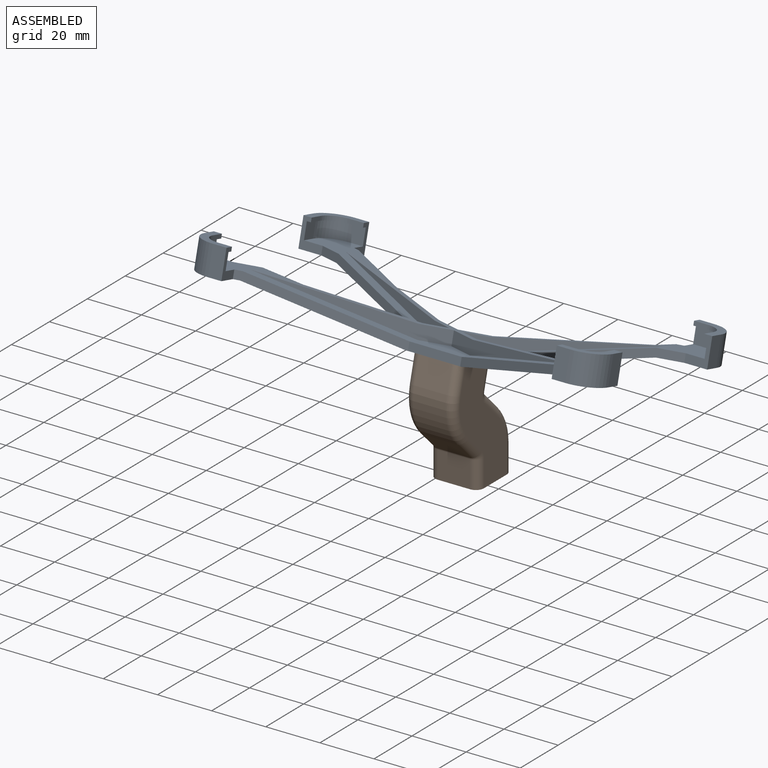
[diagram: assembled view]
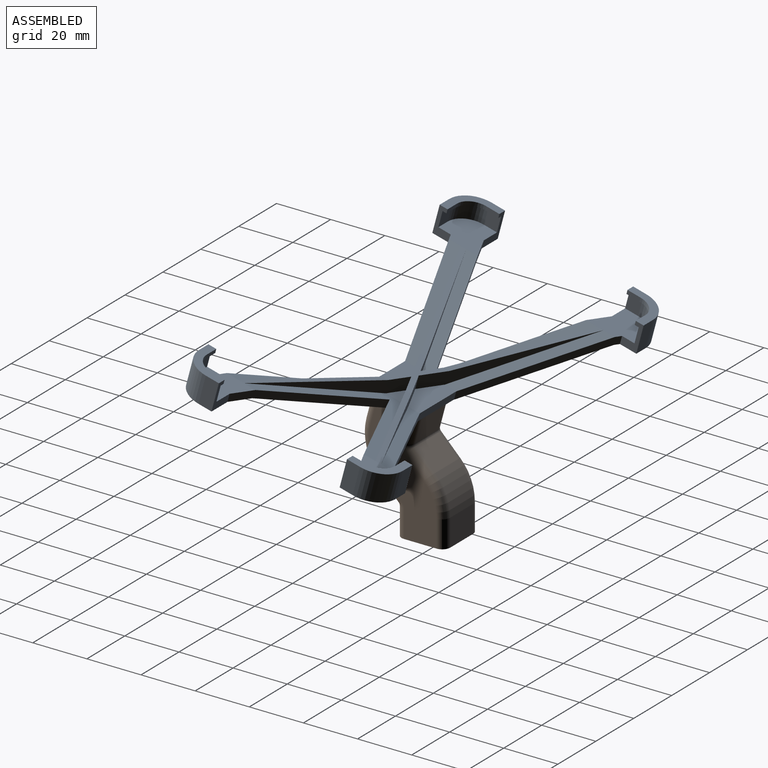
[diagram: assembled view, second angle]
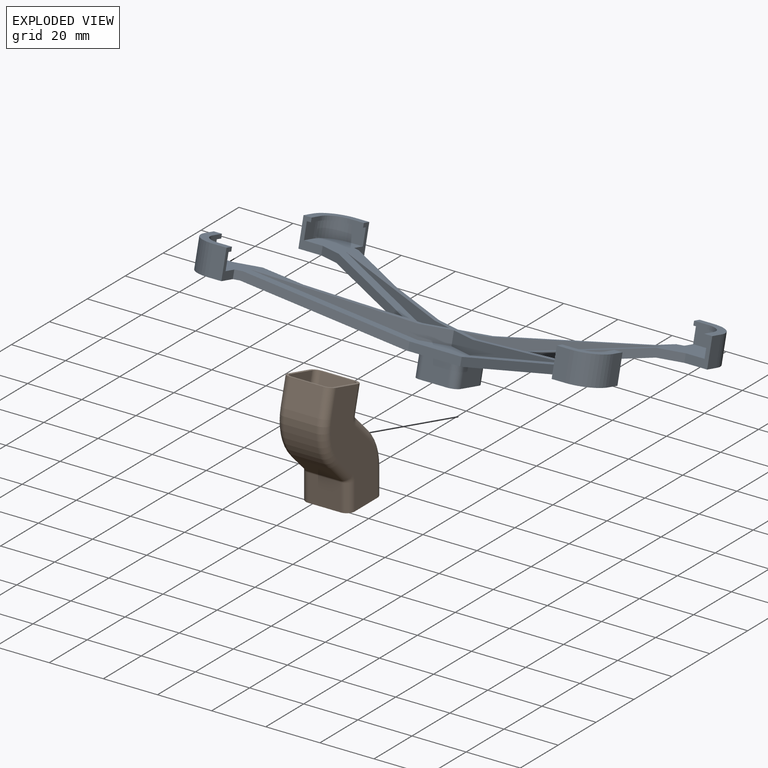
[diagram: exploded view]
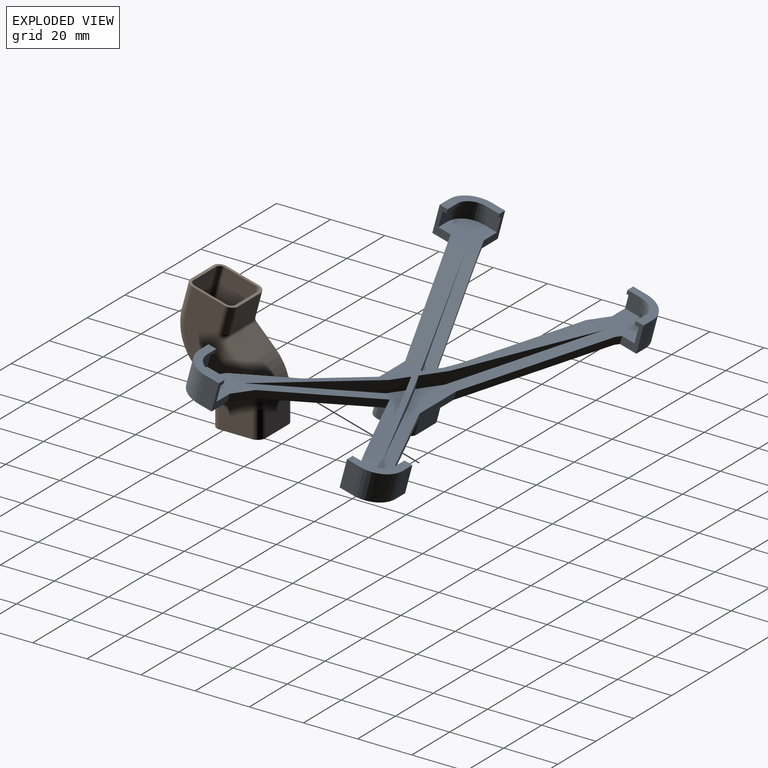
[diagram: exploded view, second angle]
ASSEMBLY  parts=2 mates=3
PART A: 114 faces, bbox 151x78x30.5 mm
  f0: plane 16.77x15.36mm, normal (0,0,1), area 189.4mm2, adj f10,f11,f12,f22,f25,f26,f63,f70
  f1: plane 16.77x15.36mm, normal (0,0,1), area 189.4mm2, adj f9,f10,f13,f27,f28,f31,f59,f67
  f2: plane 19.28x8.69mm, normal (0,0,1), area 126mm2, adj f8,f9,f49,f51,f52
  f3: plane 7.19x6.43mm, normal (0,0,1), area 23.1mm2, adj f10,f53,f54
  f4: plane 19.28x8.69mm, normal (0,0,1), area 126mm2, adj f6,f11,f50,f55,f56
  f5: plane 7.19x6.43mm, normal (0,0,1), area 23.1mm2, adj f7,f57,f58
  f6: plane 49x26.28mm, normal (0.24,0,0.97), area 221mm2, adj f4,f21,f41,f56
  f7: plane 50.23x49mm, normal (0.24,0,0.97), area 438.9mm2, adj f5,f37,f38,f40,f41,f57,f58
  f8: plane 49x26.28mm, normal (0.24,0,0.97), area 221mm2, adj f2,f32,f40,f51
  f9: plane 49x26.28mm, normal (-0.24,0,0.97), area 221mm2, adj f1,f2,f13,f52
  f10: plane 50.23x49mm, normal (-0.24,0,0.97), area 438.9mm2, adj f0,f1,f3,f26,f27,f53,f54
  f11: plane 49x26.28mm, normal (-0.24,0,0.97), area 221mm2, adj f0,f4,f12,f55
  f12: plane 51.36x22.96mm, normal (-0.41,-0.91,0), area 173.5mm2, adj f0,f11,f22,f42,f46,f47,f50
  f13: plane 51.36x22.96mm, normal (-0.41,0.91,0), area 173.5mm2, adj f1,f9,f31,f45,f46,f47,f49
  f14: plane 10.5x5mm, normal (-1,0,0), area 52.5mm2, adj f18,f39,f44,f85
  f15: plane 10.5x5mm, normal (1,0,0), area 52.5mm2, adj f24,f25,f42,f90
  f16: plane 10.5x5mm, normal (1,0,0), area 52.5mm2, adj f28,f29,f45,f94
  f17: plane 10.5x5mm, normal (-1,0,0), area 52.5mm2, adj f35,f36,f43,f79
  f18: cylinder r=9.5mm len=10.5mm, axis (0,0,1), area 156.7mm2, adj f14,f19,f44,f85
  f19: plane 10.5x5mm, normal (0,-1,0), area 52.5mm2, adj f18,f20,f44,f85
  f20: plane 10.5x6.26mm, normal (1,0,0), area 32.3mm2, adj f19,f21,f41,f44,f73,f81,f83,f85
  f21: plane 51.36x22.96mm, normal (0.41,-0.91,0), area 173.5mm2, adj f6,f20,f41,f44,f47,f48,f50
  f22: plane 10.5x6.26mm, normal (-1,0,0), area 32.3mm2, adj f0,f12,f23,f42,f72,f86,f89,f90
  f23: plane 10.5x5mm, normal (0,-1,0), area 52.5mm2, adj f22,f24,f42,f90
  f24: cylinder r=9.5mm len=10.5mm, axis (0,0,1), area 156.7mm2, adj f15,f23,f42,f90
  f25: plane 10.5x8.43mm, normal (0,1,0), area 38.8mm2, adj f0,f15,f26,f42,f70,f86,f87,f90
  f26: plane 54.81x24.5mm, normal (0.41,0.91,0), area 184.6mm2, adj f0,f10,f25,f27,f42,f46
  f27: plane 54.81x24.5mm, normal (0.41,-0.91,0), area 184.6mm2, adj f1,f10,f26,f28,f45,f46
  f28: plane 10.5x8.43mm, normal (0,-1,0), area 38.8mm2, adj f1,f16,f27,f45,f69,f93,f94,f95
  f29: cylinder r=9.5mm len=10.5mm, axis (0,0,1), area 156.7mm2, adj f16,f30,f45,f94
  f30: plane 10.5x5mm, normal (0,1,0), area 52.5mm2, adj f29,f31,f45,f94
  f31: plane 10.5x6.26mm, normal (-1,0,0), area 32.3mm2, adj f1,f13,f30,f45,f67,f91,f94,f95
  f32: plane 51.36x22.96mm, normal (0.41,0.91,0), area 173.5mm2, adj f8,f33,f40,f43,f47,f48,f49
  f33: plane 10.5x6.26mm, normal (1,0,0), area 32.3mm2, adj f32,f34,f40,f43,f66,f78,f79,f80
  f34: plane 10.5x5mm, normal (0,1,0), area 52.5mm2, adj f33,f35,f43,f79
  f35: cylinder r=9.5mm len=10.5mm, axis (0,0,1), area 156.7mm2, adj f17,f34,f43,f79
  f36: plane 10.5x8.43mm, normal (0,-1,0), area 38.8mm2, adj f17,f37,f40,f43,f64,f76,f79,f80
  f37: plane 54.81x24.5mm, normal (-0.41,-0.91,0), area 184.6mm2, adj f7,f36,f38,f40,f43,f48
  f38: plane 54.81x24.5mm, normal (-0.41,0.91,0), area 184.6mm2, adj f7,f37,f39,f41,f44,f48
  f39: plane 10.5x8.43mm, normal (0,1,0), area 38.8mm2, adj f14,f38,f41,f44,f75,f81,f82,f85
  f40: plane 16.77x15.36mm, normal (0,0,1), area 189.4mm2, adj f7,f8,f32,f33,f36,f37,f61,f64
  f41: plane 16.77x15.36mm, normal (0,0,1), area 189.4mm2, adj f6,f7,f20,f21,f38,f39,f60,f73
  f42: plane 18.11x16.5mm, normal (0,0,-1), area 221mm2, adj f12,f15,f22,f23,f24,f25,f26,f46
  f43: plane 18.11x16.5mm, normal (0,0,-1), area 221mm2, adj f17,f32,f33,f34,f35,f36,f37,f48
  f44: plane 18.11x16.5mm, normal (0,0,-1), area 221mm2, adj f14,f18,f19,f20,f21,f38,f39,f48
  f45: plane 18.11x16.5mm, normal (0,0,-1), area 221mm2, adj f13,f16,f27,f28,f29,f30,f31,f46
  f46: plane 63.7x49mm, normal (0.24,0,-0.97), area 1102.8mm2, adj f12,f13,f26,f27,f42,f45,f47
  f47: plane 20x19.89mm, normal (0,0,-1), area 143.2mm2, adj f12,f13,f21,f32,f46,f48,f49,f50
  f48: plane 63.7x49mm, normal (-0.24,0,-0.97), area 1102.8mm2, adj f21,f32,f37,f38,f43,f44,f47
  f49: plane 19.28x3mm, normal (0,1,0), area 57.8mm2, adj f2,f13,f32,f47
  f50: plane 19.28x3mm, normal (0,-1,0), area 57.8mm2, adj f4,f12,f21,f47
  f51: plane 58.64x26.21mm, normal (0.41,0.91,0), area 185.6mm2, adj f2,f8,f52,f61,f62
  f52: plane 58.64x26.21mm, normal (-0.41,0.91,0), area 185.6mm2, adj f2,f9,f51,f59,f62
  f53: plane 56.19x25.11mm, normal (0.41,-0.91,0), area 172.2mm2, adj f3,f10,f54,f59,f62
  f54: plane 56.19x25.11mm, normal (0.41,0.91,0), area 172.2mm2, adj f3,f10,f53,f62,f63
  f55: plane 58.64x26.21mm, normal (-0.41,-0.91,0), area 185.6mm2, adj f4,f11,f56,f62,f63
  f56: plane 58.64x26.21mm, normal (0.41,-0.91,0), area 185.6mm2, adj f4,f6,f55,f60,f62
  f57: plane 56.19x25.11mm, normal (-0.41,0.91,0), area 172.2mm2, adj f5,f7,f58,f60,f62
  f58: plane 56.19x25.11mm, normal (-0.41,-0.91,0), area 172.2mm2, adj f5,f7,f57,f61,f62
  f59: plane 48.64x23.93mm, normal (-0.14,0,0.99), area 107.6mm2, adj f1,f52,f53,f62
  f60: plane 48.64x23.93mm, normal (0.14,0,0.99), area 107.6mm2, adj f41,f56,f57,f62
  f61: plane 48.64x23.93mm, normal (0.14,0,0.99), area 107.6mm2, adj f40,f51,f58,f62
  f62: plane 20x11.13mm, normal (0,0,1), area 82.3mm2, adj f51,f52,f53,f54,f55,f56,f57,f58
  f63: plane 48.64x23.93mm, normal (-0.14,0,0.99), area 107.6mm2, adj f0,f54,f55,f62
  f64: plane 6x5mm, normal (1,0,0), area 30mm2, adj f36,f40,f65,f80
  f65: cylinder r=8mm len=8mm, axis (0,0,-1), area 75.4mm2, adj f40,f64,f66,f80
  f66: plane 6x5mm, normal (0,-1,0), area 30mm2, adj f33,f40,f65,f80
  f67: plane 6x5mm, normal (0,-1,0), area 30mm2, adj f1,f31,f68,f95
  f68: cylinder r=8mm len=8mm, axis (0,0,-1), area 75.4mm2, adj f1,f67,f69,f95
  f69: plane 6x5mm, normal (-1,0,0), area 30mm2, adj f1,f28,f68,f95
  f70: plane 6x5mm, normal (-1,0,0), area 30mm2, adj f0,f25,f71,f86
  f71: cylinder r=8mm len=8mm, axis (0,0,-1), area 75.4mm2, adj f0,f70,f72,f86
  f72: plane 6x5mm, normal (0,1,0), area 30mm2, adj f0,f22,f71,f86
  f73: plane 6x5mm, normal (0,1,0), area 30mm2, adj f20,f41,f74,f81
  f74: cylinder r=8mm len=8mm, axis (0,0,-1), area 75.4mm2, adj f41,f73,f75,f81
  f75: plane 6x5mm, normal (1,0,0), area 30mm2, adj f39,f41,f74,f81
  f76: plane 5x1.5mm, normal (1,0,0), area 7.5mm2, adj f36,f77,f79,f80
  f77: cylinder r=6.5mm len=6.5mm, axis (0,0,-1), area 15.3mm2, adj f76,f78,f79,f80
  f78: plane 5x1.5mm, normal (0,-1,0), area 7.5mm2, adj f33,f77,f79,f80
  f79: plane 14.5x14.5mm, normal (0,0,1), area 67.7mm2, adj f17,f33,f34,f35,f36,f76,f77,f78
  f80: plane 13x13mm, normal (0,0,-1), area 32.1mm2, adj f33,f36,f64,f65,f66,f76,f77,f78
  f81: plane 13x13mm, normal (0,0,-1), area 32.1mm2, adj f20,f39,f73,f74,f75,f82,f83,f84
  f82: plane 5x1.5mm, normal (1,0,0), area 7.5mm2, adj f39,f81,f84,f85
  f83: plane 5x1.5mm, normal (0,1,0), area 7.5mm2, adj f20,f81,f84,f85
  f84: cylinder r=6.5mm len=6.5mm, axis (0,0,-1), area 15.3mm2, adj f81,f82,f83,f85
  f85: plane 14.5x14.5mm, normal (0,0,1), area 67.7mm2, adj f14,f18,f19,f20,f39,f82,f83,f84
  f86: plane 13x13mm, normal (0,0,-1), area 32.1mm2, adj f22,f25,f70,f71,f72,f87,f88,f89
  f87: plane 5x1.5mm, normal (-1,0,0), area 7.5mm2, adj f25,f86,f88,f90
  f88: cylinder r=6.5mm len=6.5mm, axis (0,0,-1), area 15.3mm2, adj f86,f87,f89,f90
  f89: plane 5x1.5mm, normal (0,1,0), area 7.5mm2, adj f22,f86,f88,f90
  f90: plane 14.5x14.5mm, normal (0,0,1), area 67.7mm2, adj f15,f22,f23,f24,f25,f87,f88,f89
  f91: plane 5x1.5mm, normal (0,-1,0), area 7.5mm2, adj f31,f92,f94,f95
  f92: cylinder r=6.5mm len=6.5mm, axis (0,0,-1), area 15.3mm2, adj f91,f93,f94,f95
  f93: plane 5x1.5mm, normal (-1,0,0), area 7.5mm2, adj f28,f92,f94,f95
  f94: plane 14.5x14.5mm, normal (0,0,1), area 67.7mm2, adj f16,f28,f29,f30,f31,f91,f92,f93
  f95: plane 13x13mm, normal (0,0,-1), area 32.1mm2, adj f28,f31,f67,f68,f69,f91,f92,f93
  f96: plane 10x8mm, normal (-1,0,0), area 80mm2, adj f47,f97,f111,f112
  f97: cylinder r=3mm len=8mm, axis (0,0,1), area 37.7mm2, adj f47,f96,f98,f112
  f98: plane 10x8mm, normal (0,1,0), area 80mm2, adj f47,f97,f99,f112
  f99: cylinder r=3mm len=8mm, axis (0,0,1), area 37.7mm2, adj f47,f98,f100,f112
  f100: plane 10x8mm, normal (1,0,0), area 80mm2, adj f47,f99,f101,f112
  f101: cylinder r=3mm len=8mm, axis (0,0,1), area 37.7mm2, adj f47,f100,f102,f112
  f102: plane 10x8mm, normal (0,-1,0), area 80mm2, adj f47,f101,f111,f112
  f103: cylinder r=1mm len=8mm, axis (0,0,1), area 12.6mm2, adj f104,f110,f112,f113
  f104: plane 10x8mm, normal (1,0,0), area 80mm2, adj f103,f105,f112,f113
  f105: cylinder r=1mm len=8mm, axis (0,0,1), area 12.6mm2, adj f104,f106,f112,f113
  f106: plane 10x8mm, normal (0,1,0), area 80mm2, adj f105,f107,f112,f113
  f107: cylinder r=1mm len=8mm, axis (0,0,1), area 12.6mm2, adj f106,f108,f112,f113
  f108: plane 10x8mm, normal (-1,0,0), area 80mm2, adj f107,f109,f112,f113
  f109: cylinder r=1mm len=8mm, axis (0,0,1), area 12.6mm2, adj f108,f110,f112,f113
  f110: plane 10x8mm, normal (0,-1,0), area 80mm2, adj f103,f109,f112,f113
  f111: cylinder r=3mm len=8mm, axis (0,0,1), area 37.7mm2, adj f47,f96,f102,f112
  f112: plane 16x16mm, normal (0,0,-1), area 105.1mm2, adj f96,f97,f98,f99,f100,f101,f102,f103
  f113: plane 12x12mm, normal (0,0,-1), area 143.1mm2, adj f103,f104,f105,f106,f107,f108,f109,f110
PART B: 66 faces, bbox 18x34.1x45.8 mm
  f0: plane 12x10mm, normal (0,-1,0), area 120mm2, adj f1,f5,f6,f32
  f1: cylinder r=2mm len=10mm, axis (0,0,1), area 31.4mm2, adj f0,f7,f26,f32
  f2: cylinder r=2mm len=10mm, axis (0,0,1), area 31.4mm2, adj f3,f8,f26,f32
  f3: plane 12x10mm, normal (0,1,0), area 120mm2, adj f2,f4,f9,f32
  f4: cylinder r=2mm len=10mm, axis (0,0,1), area 31.4mm2, adj f3,f10,f30,f32
  f5: cylinder r=2mm len=10mm, axis (0,0,1), area 31.4mm2, adj f0,f11,f30,f32
  f6: cylinder r=18mm len=12.73mm, axis (1,0,0), area 169.6mm2, adj f0,f7,f11,f12
  f7: torus R=16mm, axis (1,0,0), area 42.6mm2, adj f1,f6,f13,f26
  f8: torus R=4mm, axis (1,0,0), area 6.7mm2, adj f2,f9,f14,f26
  f9: cylinder r=2mm len=12mm, axis (1,0,0), area 18.8mm2, adj f3,f8,f10,f15
  f10: torus R=4mm, axis (1,0,0), area 6.7mm2, adj f4,f9,f16,f30
  f11: torus R=16mm, axis (1,0,0), area 42.6mm2, adj f5,f6,f17,f30
  f12: plane 12x7.07mm, normal (0,-0.71,-0.71), area 120mm2, adj f6,f13,f17,f18
  f13: cylinder r=2mm len=8.49mm, axis (0,-0.71,0.71), area 31.4mm2, adj f7,f12,f19,f26
  f14: cylinder r=2mm len=8.49mm, axis (0,-0.71,0.71), area 31.4mm2, adj f8,f15,f20,f26
  f15: plane 12x7.07mm, normal (0,0.71,0.71), area 120mm2, adj f9,f14,f16,f21
  f16: cylinder r=2mm len=8.49mm, axis (0,-0.71,0.71), area 31.4mm2, adj f10,f15,f22,f30
  f17: cylinder r=2mm len=8.49mm, axis (0,-0.71,0.71), area 31.4mm2, adj f11,f12,f23,f30
  f18: cylinder r=2mm len=12mm, axis (-1,0,0), area 25.1mm2, adj f12,f19,f23,f24
  f19: torus R=4mm, axis (-1,0,0), area 9mm2, adj f13,f18,f25,f26
  f20: torus R=16mm, axis (-1,0,0), area 56.8mm2, adj f14,f21,f26,f27
  f21: cylinder r=18mm len=17.39mm, axis (-1,0,0), area 226.2mm2, adj f15,f20,f22,f28
  f22: torus R=16mm, axis (-1,0,0), area 56.8mm2, adj f16,f21,f29,f30
  f23: torus R=4mm, axis (-1,0,0), area 9mm2, adj f17,f18,f30,f31
  f24: plane 12x9.66mm, normal (0,-0.97,0.26), area 120mm2, adj f18,f25,f31,f33
  f25: cylinder r=2mm len=10.18mm, axis (0,0.26,0.97), area 31.4mm2, adj f19,f24,f26,f33
  f26: plane 45.01x24.93mm, normal (-1,0,0), area 579.9mm2, adj f1,f2,f7,f8,f13,f14,f19,f20
  f27: cylinder r=2mm len=10.18mm, axis (0,0.26,0.97), area 31.4mm2, adj f20,f26,f28,f33
  f28: plane 12x9.66mm, normal (0,0.97,-0.26), area 120mm2, adj f21,f27,f29,f33
  f29: cylinder r=2mm len=10.18mm, axis (0,0.26,0.97), area 31.4mm2, adj f22,f28,f30,f33
  f30: plane 45.01x24.93mm, normal (1,0,0), area 579.9mm2, adj f4,f5,f10,f11,f16,f17,f22,f23
  f31: cylinder r=2mm len=10.18mm, axis (0,0.26,0.97), area 31.4mm2, adj f23,f24,f30,f33
  f32: plane 18x18mm, normal (0,0,-1), area 63.7mm2, adj f0,f1,f2,f3,f4,f5,f26,f30
  f33: plane 18x17.39mm, normal (0,0.26,0.97), area 63.7mm2, adj f24,f25,f26,f27,f28,f29,f30,f31
  f34: plane 12x10mm, normal (0,1,0), area 120mm2, adj f32,f35,f41,f42
  f35: cylinder r=3mm len=10mm, axis (0,0,1), area 47.1mm2, adj f32,f34,f36,f43
  f36: plane 45.01x24.93mm, normal (-1,0,0), area 579.9mm2, adj f32,f33,f35,f37,f43,f44,f49,f50
  f37: cylinder r=3mm len=10mm, axis (0,0,1), area 47.1mm2, adj f32,f36,f38,f44
  f38: plane 12x10mm, normal (0,-1,0), area 120mm2, adj f32,f37,f39,f45
  f39: cylinder r=3mm len=10mm, axis (0,0,1), area 47.1mm2, adj f32,f38,f40,f46
  f40: plane 45.01x24.93mm, normal (1,0,0), area 579.9mm2, adj f32,f33,f39,f41,f46,f47,f52,f53
  f41: cylinder r=3mm len=10mm, axis (0,0,1), area 47.1mm2, adj f32,f34,f40,f47
  f42: cylinder r=19mm len=13.44mm, axis (1,0,0), area 179.1mm2, adj f34,f43,f47,f48
  f43: torus R=16mm, axis (1,0,0), area 66.3mm2, adj f35,f36,f42,f49
  f44: torus R=4mm, axis (1,0,0), area 7.7mm2, adj f36,f37,f45,f50
  f45: cylinder r=1mm len=12mm, axis (1,0,0), area 9.4mm2, adj f38,f44,f46,f51
  f46: torus R=4mm, axis (1,0,0), area 7.7mm2, adj f39,f40,f45,f52
  f47: torus R=16mm, axis (1,0,0), area 66.3mm2, adj f40,f41,f42,f53
  f48: plane 12x7.07mm, normal (0,0.71,0.71), area 120mm2, adj f42,f49,f53,f54
  f49: cylinder r=3mm len=9.19mm, axis (0,-0.71,0.71), area 47.1mm2, adj f36,f43,f48,f55
  f50: cylinder r=3mm len=9.19mm, axis (0,-0.71,0.71), area 47.1mm2, adj f36,f44,f51,f56
  f51: plane 12x7.07mm, normal (0,-0.71,-0.71), area 120mm2, adj f45,f50,f52,f57
  f52: cylinder r=3mm len=9.19mm, axis (0,-0.71,0.71), area 47.1mm2, adj f40,f46,f51,f58
  f53: cylinder r=3mm len=9.19mm, axis (0,-0.71,0.71), area 47.1mm2, adj f40,f47,f48,f59
  f54: cylinder r=1mm len=12mm, axis (-1,0,0), area 12.6mm2, adj f48,f55,f59,f60
  f55: torus R=4mm, axis (-1,0,0), area 10.3mm2, adj f36,f49,f54,f61
  f56: torus R=16mm, axis (-1,0,0), area 88.4mm2, adj f36,f50,f57,f62
  f57: cylinder r=19mm len=18.35mm, axis (-1,0,0), area 238.8mm2, adj f51,f56,f58,f63
  f58: torus R=16mm, axis (-1,0,0), area 88.4mm2, adj f40,f52,f57,f64
  f59: torus R=4mm, axis (-1,0,0), area 10.3mm2, adj f40,f53,f54,f65
  f60: plane 12x9.66mm, normal (0,0.97,-0.26), area 120mm2, adj f33,f54,f61,f65
  f61: cylinder r=3mm len=10.44mm, axis (0,0.26,0.97), area 47.1mm2, adj f33,f36,f55,f60
  f62: cylinder r=3mm len=10.44mm, axis (0,0.26,0.97), area 47.1mm2, adj f33,f36,f56,f63
  f63: plane 12x9.66mm, normal (0,-0.97,0.26), area 120mm2, adj f33,f57,f62,f64
  f64: cylinder r=3mm len=10.44mm, axis (0,0.26,0.97), area 47.1mm2, adj f33,f40,f58,f63
  f65: cylinder r=3mm len=10.44mm, axis (0,0.26,0.97), area 47.1mm2, adj f33,f40,f59,f60
PLACE A rot(axis=(-1,0,0),15deg) t=(-9.43,12.74,25.9)mm
PLACE B t=(-9.43,18.85,-32.05)mm
MATE planar B.f26 <-> A.f100  axis (-1,0,0) through (-1.43,12.32,-10.29)mm
MATE planar B.f24 <-> A.f98  axis (0,-0.97,0.26) through (-9.43,16.58,9.34)mm
MATE planar B.f33 <-> A.f113  axis (0,0.26,0.97) through (-9.43,1.13,13.48)mm
